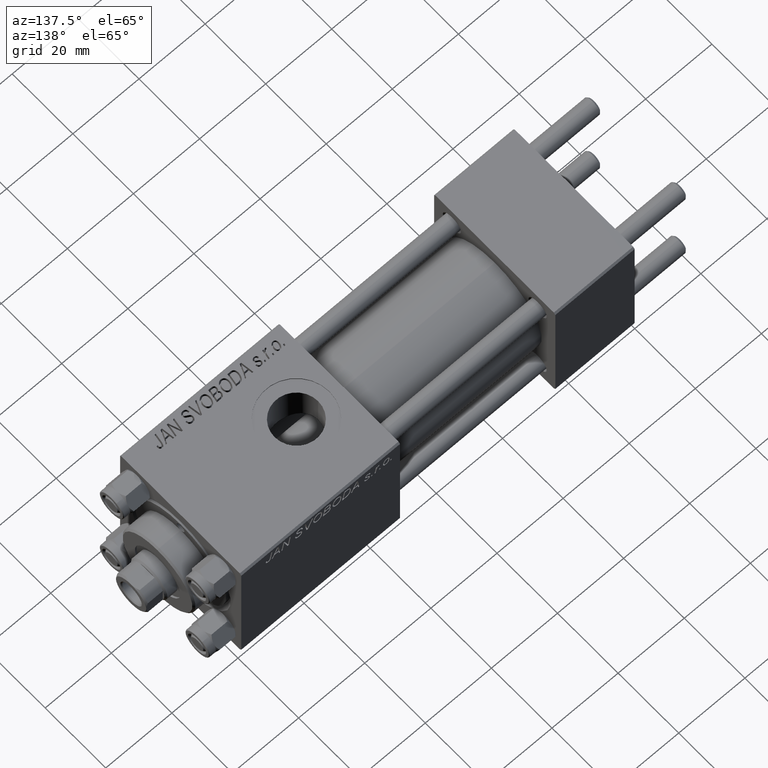
[diagram: clean part render]
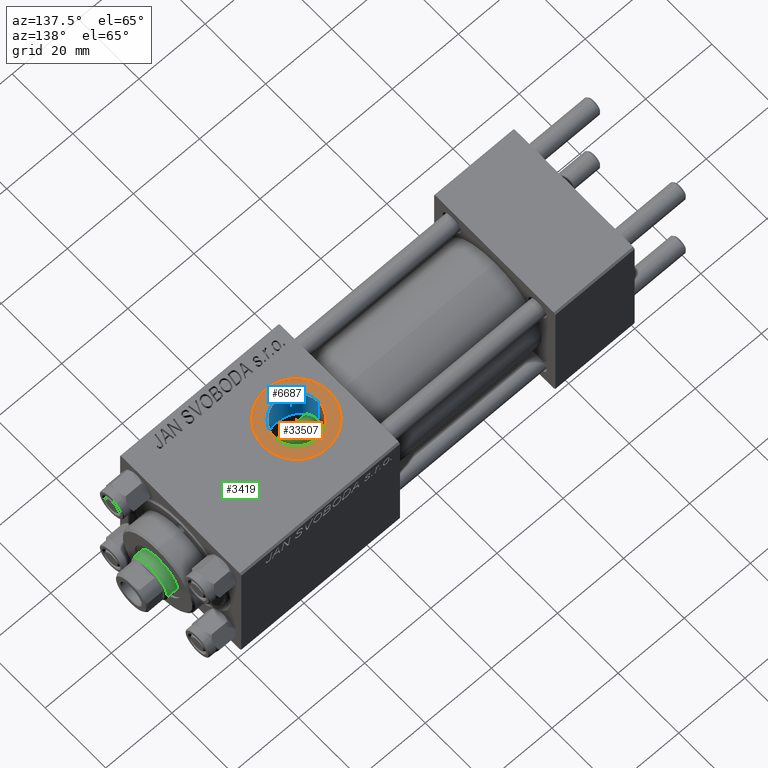
[diagram: same view with three faces highlighted in distinct colors, each labeled with its STEP entity id]
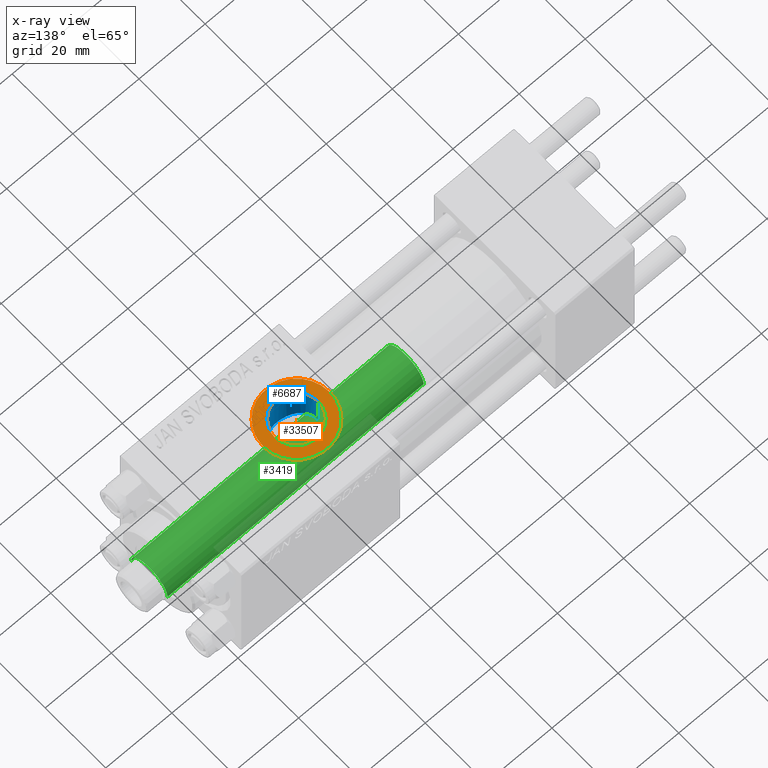
[diagram: x-ray of the same camera — body ghosted, the three highlighted faces saturated]
A machine part, auxiliary view with three faces highlighted in distinct colors.
The next image is the same camera in x-ray (body ghosted, the three faces saturated) — at least one of them is partly hidden behind the body in this view.
Their STEP definitions:

[orange] entity #33507 — the highlighted planar face has unit normal (0, 0, 1).
#2434 = ORIENTED_EDGE ( 'NONE', *, *, #42763, .T. ) ;
#4760 = CARTESIAN_POINT ( 'NONE',  ( 73.99999999999845102, -5.100766768292640183E-16, 19.80000000000000071 ) ) ;
#5747 = DIRECTION ( 'NONE',  ( -0.000000000000000000, -0.000000000000000000, -1.000000000000000000 ) ) ;
#6570 = DIRECTION ( 'NONE',  ( 1.000000000000000000, 0.000000000000000000, 0.000000000000000000 ) ) ;
#7223 = EDGE_LOOP ( 'NONE', ( #7659, #22479 ) ) ;
#7659 = ORIENTED_EDGE ( 'NONE', *, *, #28702, .T. ) ;
#9168 = CIRCLE ( 'NONE', #37365, 6.580000000001542837 ) ;
#9433 = FACE_OUTER_BOUND ( 'NONE', #7223, .T. ) ;
#9868 = CARTESIAN_POINT ( 'NONE',  ( 84.00000000000000000, -1.734723475976806897E-15, 19.80000000000000071 ) ) ;
#10233 = CARTESIAN_POINT ( 'NONE',  ( 90.58000000000154728, -9.289058821376599092E-16, 19.80000000000000071 ) ) ;
#12726 = EDGE_LOOP ( 'NONE', ( #39697, #2434 ) ) ;
#13707 = DIRECTION ( 'NONE',  ( 1.000000000000000000, 0.000000000000000000, -0.000000000000000000 ) ) ;
#15694 = DIRECTION ( 'NONE',  ( 0.000000000000000000, 0.000000000000000000, 1.000000000000000000 ) ) ;
#16922 = AXIS2_PLACEMENT_3D ( 'NONE', #19707, #15694, #31067 ) ;
#16968 = FACE_BOUND ( 'NONE', #12726, .T. ) ;
#17971 = CARTESIAN_POINT ( 'NONE',  ( 84.00000000000000000, -1.734723475976806897E-15, 19.80000000000000071 ) ) ;
#19707 = CARTESIAN_POINT ( 'NONE',  ( 84.00000000000000000, -1.734723475976806897E-15, 19.80000000000000071 ) ) ;
#21163 = CIRCLE ( 'NONE', #41377, 10.00000000000154898 ) ;
#22479 = ORIENTED_EDGE ( 'NONE', *, *, #34951, .T. ) ;
#24967 = CARTESIAN_POINT ( 'NONE',  ( 77.41999999999846693, -1.734723475976806897E-15, 19.80000000000000071 ) ) ;
#25116 = DIRECTION ( 'NONE',  ( 1.000000000000000000, 0.000000000000000000, 0.000000000000000000 ) ) ;
#28702 = EDGE_CURVE ( 'NONE', #30989, #31886, #36269, .T. ) ;
#30989 = VERTEX_POINT ( 'NONE', #37843 ) ;
#31067 = DIRECTION ( 'NONE',  ( 1.000000000000000000, 0.000000000000000000, 0.000000000000000000 ) ) ;
#31886 = VERTEX_POINT ( 'NONE', #4760 ) ;
#32694 = CARTESIAN_POINT ( 'NONE',  ( 84.00000000000000000, -1.734723475976806897E-15, 19.80000000000000071 ) ) ;
#33507 = ADVANCED_FACE ( 'NONE', ( #16968, #9433 ), #37167, .T. ) ;
#34951 = EDGE_CURVE ( 'NONE', #31886, #30989, #21163, .T. ) ;
#35838 = AXIS2_PLACEMENT_3D ( 'NONE', #9868, #36344, #6570 ) ;
#36269 = CIRCLE ( 'NONE', #16922, 10.00000000000154898 ) ;
#36344 = DIRECTION ( 'NONE',  ( -0.000000000000000000, -0.000000000000000000, -1.000000000000000000 ) ) ;
#37167 = PLANE ( 'NONE',  #44508 ) ;
#37365 = AXIS2_PLACEMENT_3D ( 'NONE', #47924, #5747, #48168 ) ;
#37843 = CARTESIAN_POINT ( 'NONE',  ( 94.00000000000154898, -1.734723475976806897E-15, 19.80000000000000071 ) ) ;
#39697 = ORIENTED_EDGE ( 'NONE', *, *, #40190, .T. ) ;
#39886 = CIRCLE ( 'NONE', #35838, 6.580000000001542837 ) ;
#40190 = EDGE_CURVE ( 'NONE', #40823, #46776, #9168, .T. ) ;
#40823 = VERTEX_POINT ( 'NONE', #24967 ) ;
#41377 = AXIS2_PLACEMENT_3D ( 'NONE', #32694, #47632, #25116 ) ;
#42763 = EDGE_CURVE ( 'NONE', #46776, #40823, #39886, .T. ) ;
#44508 = AXIS2_PLACEMENT_3D ( 'NONE', #17971, #48792, #13707 ) ;
#46776 = VERTEX_POINT ( 'NONE', #10233 ) ;
#47632 = DIRECTION ( 'NONE',  ( 0.000000000000000000, 0.000000000000000000, 1.000000000000000000 ) ) ;
#47924 = CARTESIAN_POINT ( 'NONE',  ( 84.00000000000000000, -1.734723475976806897E-15, 19.80000000000000071 ) ) ;
#48168 = DIRECTION ( 'NONE',  ( 1.000000000000000000, 0.000000000000000000, 0.000000000000000000 ) ) ;
#48792 = DIRECTION ( 'NONE',  ( 0.000000000000000000, 0.000000000000000000, 1.000000000000000000 ) ) ;

[blue] entity #6687 — the highlighted cylindrical surface (edge-blend (fillet) strip) has radius 6.58 mm, axis along (0, 0, -1).
#222 = CARTESIAN_POINT ( 'NONE',  ( 81.50365122394816808, -6.100731835174567408, 7.925108619061488113 ) ) ;
#474 = CARTESIAN_POINT ( 'NONE',  ( 82.64228046384747017, -6.441510615516904181, 7.649229527461429257 ) ) ;
#719 = CARTESIAN_POINT ( 'NONE',  ( 80.16020215073048405, -5.356874842517142632, 8.448716332623810388 ) ) ;
#1594 = EDGE_CURVE ( 'NONE', #16002, #26868, #16450, .T. ) ;
#2023 = CARTESIAN_POINT ( 'NONE',  ( 90.58000000000154728, 1.836897619300433381E-15, 15.00000000000000000 ) ) ;
#3030 = CARTESIAN_POINT ( 'NONE',  ( 87.26053252520590320, -5.728070196491263921, 8.200680661955367157 ) ) ;
#3266 = CARTESIAN_POINT ( 'NONE',  ( 90.30000000000001137, -1.899052395280420136, 9.818024241158690657 ) ) ;
#6570 = DIRECTION ( 'NONE',  ( 1.000000000000000000, 0.000000000000000000, 0.000000000000000000 ) ) ;
#6687 = ADVANCED_FACE ( 'NONE', ( #19135 ), #46423, .F. ) ;
#7320 = CARTESIAN_POINT ( 'NONE',  ( 83.43610688730976221, -6.558932760434257325, 7.548550817887899278 ) ) ;
#8326 = CARTESIAN_POINT ( 'NONE',  ( 77.56705469300284506, -1.397686090543303283, 9.903818455115036556 ) ) ;
#9479 = EDGE_LOOP ( 'NONE', ( #36202, #37768, #29813, #13386, #32830, #16233 ) ) ;
#9868 = CARTESIAN_POINT ( 'NONE',  ( 84.00000000000000000, -1.734723475976806897E-15, 19.80000000000000071 ) ) ;
#10233 = CARTESIAN_POINT ( 'NONE',  ( 90.58000000000154728, -9.289058821376599092E-16, 19.80000000000000071 ) ) ;
#10389 = CARTESIAN_POINT ( 'NONE',  ( 90.58000000000156149, -0.3230844264541308797, 14.99999999999999822 ) ) ;
#10641 = CARTESIAN_POINT ( 'NONE',  ( 88.34134544482054707, -4.948221379670047604, 8.691185487698470880 ) ) ;
#11121 = CARTESIAN_POINT ( 'NONE',  ( 87.74050804270864035, -5.416766998257490862, 8.406790300727948306 ) ) ;
#11249 = DIRECTION ( 'NONE',  ( -0.000000000000000000, -0.000000000000000000, 1.000000000000000000 ) ) ;
#11340 = CARTESIAN_POINT ( 'NONE',  ( 90.30000000000001137, -1.899052395280420136, 14.87930105885285670 ) ) ;
#11625 = CARTESIAN_POINT ( 'NONE',  ( 79.57031396582577543, -4.880372653833860319, 8.732632965334568453 ) ) ;
#11771 = EDGE_CURVE ( 'NONE', #16002, #48082, #32974, .T. ) ;
#11872 = CARTESIAN_POINT ( 'NONE',  ( 84.04743762832036680, -6.582974628388996940, 7.527585999843090292 ) ) ;
#11944 = CARTESIAN_POINT ( 'NONE',  ( 77.41999999999846693, -1.734723475976806897E-15, 42.80000000000000426 ) ) ;
#12373 = CARTESIAN_POINT ( 'NONE',  ( 81.15150766959031614, -5.943877247083126925, 8.044991576418468071 ) ) ;
#13386 = ORIENTED_EDGE ( 'NONE', *, *, #1594, .F. ) ;
#14413 = CARTESIAN_POINT ( 'NONE',  ( 90.03601729897108896, -2.648259396322893089, 9.649752199410302822 ) ) ;
#14899 = CARTESIAN_POINT ( 'NONE',  ( 85.83530013697877337, -6.321933289868085559, 7.748495657718812879 ) ) ;
#14964 = LINE ( 'NONE', #18721, #30166 ) ;
#15044 = B_SPLINE_CURVE_WITH_KNOTS ( 'NONE', 3,
 ( #2023, #10389, #48491, #29524, #25730, #41168 ),
 .UNSPECIFIED., .F., .F.,
 ( 4, 2, 4 ),
 ( 0.001923267627926015643, 0.002881828648815649985, 0.003840389669705283893 ),
 .UNSPECIFIED. ) ;
#15385 = CARTESIAN_POINT ( 'NONE',  ( 78.16834223545102134, -3.071777053897142729, 9.522948337697433985 ) ) ;
#15638 = CARTESIAN_POINT ( 'NONE',  ( 83.84132420776212768, -6.581215419008478840, 7.529131557805247787 ) ) ;
#15886 = CARTESIAN_POINT ( 'NONE',  ( 80.48004077057568395, -5.572564248888139282, 8.306509127488531874 ) ) ;
#16002 = VERTEX_POINT ( 'NONE', #25103 ) ;
#16131 = CARTESIAN_POINT ( 'NONE',  ( 79.29730408322323854, -4.618177244596259889, 8.875509752877485781 ) ) ;
#16180 = VERTEX_POINT ( 'NONE', #32130 ) ;
#16200 = CARTESIAN_POINT ( 'NONE',  ( 90.30000000000001137, -1.899052395280420136, 42.80000000000000426 ) ) ;
#16233 = ORIENTED_EDGE ( 'NONE', *, *, #44365, .F. ) ;
#16450 = LINE ( 'NONE', #16200, #36224 ) ;
#18419 = CARTESIAN_POINT ( 'NONE',  ( 86.39211994537743067, -6.132805105780794186, 7.899218132206713427 ) ) ;
#18454 = CARTESIAN_POINT ( 'NONE',  ( 77.41999999999846693, 1.225496641077837722E-15, 9.999999999999998224 ) ) ;
#18661 = CARTESIAN_POINT ( 'NONE',  ( 89.01171256368644435, -4.281038711601321545, 9.043476487246550732 ) ) ;
#18721 = CARTESIAN_POINT ( 'NONE',  ( 90.58000000000154728, -9.289058821376597120E-16, 42.80000000000000426 ) ) ;
#19135 = FACE_OUTER_BOUND ( 'NONE', #9479, .T. ) ;
#19222 = LINE ( 'NONE', #11944, #19716 ) ;
#19716 = VECTOR ( 'NONE', #42713, 1000.000000000000000 ) ;
#19903 = CARTESIAN_POINT ( 'NONE',  ( 78.57242859662287060, -3.724876030303978069, 9.281895439158068584 ) ) ;
#22213 = CARTESIAN_POINT ( 'NONE',  ( 87.89699318866286148, -5.305288046703262594, 8.477775428654018341 ) ) ;
#22691 = CARTESIAN_POINT ( 'NONE',  ( 84.65744280686338641, -6.559709605006789346, 7.547889352008899877 ) ) ;
#23187 = CARTESIAN_POINT ( 'NONE',  ( 78.46622740148208663, -3.565203004854784474, 9.344512687240586146 ) ) ;
#23433 = CARTESIAN_POINT ( 'NONE',  ( 77.72104259078042787, -1.977670684214428043, 9.804446867313098224 ) ) ;
#24967 = CARTESIAN_POINT ( 'NONE',  ( 77.41999999999846693, -1.734723475976806897E-15, 19.80000000000000071 ) ) ;
#25103 = CARTESIAN_POINT ( 'NONE',  ( 90.30000000000001137, -1.899052395280420136, 9.818024241158690657 ) ) ;
#25730 = CARTESIAN_POINT ( 'NONE',  ( 90.39284622331669539, -1.591040247564623700, 14.91861279833453757 ) ) ;
#26225 = CARTESIAN_POINT ( 'NONE',  ( 90.18384735178129574, -2.284382302762963501, 9.743491762341799145 ) ) ;
#26459 = CARTESIAN_POINT ( 'NONE',  ( 86.92434068310684836, -5.907044672534588869, 8.071096920454994716 ) ) ;
#26708 = CARTESIAN_POINT ( 'NONE',  ( 78.91948560029506154, -4.185857250486422210, 9.083179932574980242 ) ) ;
#26868 = VERTEX_POINT ( 'NONE', #11340 ) ;
#26960 = CARTESIAN_POINT ( 'NONE',  ( 77.41999999999848114, -0.4081853129699585803, 10.00000000000000711 ) ) ;
#29524 = CARTESIAN_POINT ( 'NONE',  ( 90.46247493449395449, -1.278752734038846484, 14.94875937294843737 ) ) ;
#29813 = ORIENTED_EDGE ( 'NONE', *, *, #40855, .T. ) ;
#30166 = VECTOR ( 'NONE', #45753, 1000.000000000000000 ) ;
#30740 = DIRECTION ( 'NONE',  ( 0.000000000000000000, 0.000000000000000000, -1.000000000000000000 ) ) ;
#31013 = CARTESIAN_POINT ( 'NONE',  ( 77.99714712711040931, -2.723766581249583485, 9.629423614267258458 ) ) ;
#31255 = CARTESIAN_POINT ( 'NONE',  ( 85.05563542025694801, -6.507095227759212008, 7.594134426896898660 ) ) ;
#32130 = CARTESIAN_POINT ( 'NONE',  ( 90.58000000000154728, 1.836897619300433381E-15, 15.00000000000000000 ) ) ;
#32830 = ORIENTED_EDGE ( 'NONE', *, *, #11771, .T. ) ;
#32974 = B_SPLINE_CURVE_WITH_KNOTS ( 'NONE', 3,
 ( #3266, #26225, #14413, #45197, #41663, #18661, #45692, #10641, #34052, #22213, #11121, #3030, #26459, #18419, #49488, #14899, #41898, #31255, #22691, #11872, #15638, #7320, #46183, #38104, #474, #38356, #38599, #222, #12373, #15886, #719, #11625, #16131, #26708, #34302, #19903, #23187, #15385, #31013, #42895, #23433, #35047, #8326, #38846, #26960, #42397 ),
 .UNSPECIFIED., .F., .F.,
 ( 4, 2, 2, 2, 2, 2, 2, 2, 2, 2, 2, 2, 2, 2, 2, 2, 2, 2, 2, 2, 2, 2, 4 ),
 ( 0.000000000000000000, 0.001207791230099372441, 0.002415582460198744882, 0.003623373690298115155, 0.004227269305347786631, 0.004831164920397457672, 0.006038956150496800623, 0.006642851765546489880, 0.007246747380596180003, 0.008454538610695601017, 0.009058434225745329305, 0.009662329840795061062, 0.01026622545584479108, 0.01087012107089451937, 0.01207791230099397942, 0.01328570353109343946, 0.01449349476119290124, 0.01509739037624264514, 0.01570128599129239078, 0.01690907722139185429, 0.01751297283644158778, 0.01811686845149132127, 0.01932465968159079173 ),
 .UNSPECIFIED. ) ;
#34052 = CARTESIAN_POINT ( 'NONE',  ( 88.19718467613775204, -5.071121963172631197, 8.619888602053425330 ) ) ;
#34302 = CARTESIAN_POINT ( 'NONE',  ( 78.79875737437667738, -4.034886358906389248, 9.151392050136836431 ) ) ;
#35047 = CARTESIAN_POINT ( 'NONE',  ( 77.61241581301695192, -1.592248641449762747, 9.874366003595781649 ) ) ;
#35838 = AXIS2_PLACEMENT_3D ( 'NONE', #9868, #36344, #6570 ) ;
#36202 = ORIENTED_EDGE ( 'NONE', *, *, #42763, .F. ) ;
#36224 = VECTOR ( 'NONE', #11249, 1000.000000000000000 ) ;
#36344 = DIRECTION ( 'NONE',  ( -0.000000000000000000, -0.000000000000000000, -1.000000000000000000 ) ) ;
#37768 = ORIENTED_EDGE ( 'NONE', *, *, #43525, .T. ) ;
#38104 = CARTESIAN_POINT ( 'NONE',  ( 82.83871781191031403, -6.479820246555592966, 7.616654439233103702 ) ) ;
#38356 = CARTESIAN_POINT ( 'NONE',  ( 82.25327158685063011, -6.347078162380216604, 7.727766182684421281 ) ) ;
#38599 = CARTESIAN_POINT ( 'NONE',  ( 82.06128195139868353, -6.290973204691355569, 7.773687993804112573 ) ) ;
#38846 = CARTESIAN_POINT ( 'NONE',  ( 77.45763783829498550, -0.8084208477571691587, 9.975121118623741623 ) ) ;
#39886 = CIRCLE ( 'NONE', #35838, 6.580000000001542837 ) ;
#40823 = VERTEX_POINT ( 'NONE', #24967 ) ;
#40855 = EDGE_CURVE ( 'NONE', #16180, #26868, #15044, .T. ) ;
#41168 = CARTESIAN_POINT ( 'NONE',  ( 90.30000000000001137, -1.899052395280420136, 14.87930105885285670 ) ) ;
#41663 = CARTESIAN_POINT ( 'NONE',  ( 89.47667727346387778, -3.667500690329295931, 9.309199649381490360 ) ) ;
#41898 = CARTESIAN_POINT ( 'NONE',  ( 85.64143006621837628, -6.375121249720390182, 7.704616833470068649 ) ) ;
#42397 = CARTESIAN_POINT ( 'NONE',  ( 77.41999999999846693, 1.225496641077837722E-15, 9.999999999999998224 ) ) ;
#42713 = DIRECTION ( 'NONE',  ( 0.000000000000000000, 0.000000000000000000, -1.000000000000000000 ) ) ;
#42763 = EDGE_CURVE ( 'NONE', #46776, #40823, #39886, .T. ) ;
#42895 = CARTESIAN_POINT ( 'NONE',  ( 77.78468472322818172, -2.169203254887546617, 9.763745855050723677 ) ) ;
#43525 = EDGE_CURVE ( 'NONE', #46776, #16180, #14964, .T. ) ;
#44365 = EDGE_CURVE ( 'NONE', #40823, #48082, #19222, .T. ) ;
#45197 = CARTESIAN_POINT ( 'NONE',  ( 89.68316260257665817, -3.338928794743214468, 9.433056230293079381 ) ) ;
#45692 = CARTESIAN_POINT ( 'NONE',  ( 88.75695250607545006, -4.561896889324866144, 8.903678834413629062 ) ) ;
#45753 = DIRECTION ( 'NONE',  ( 0.000000000000000000, 0.000000000000000000, -1.000000000000000000 ) ) ;
#46168 = DIRECTION ( 'NONE',  ( -1.000000000000000000, 0.000000000000000000, 0.000000000000000000 ) ) ;
#46183 = CARTESIAN_POINT ( 'NONE',  ( 83.23563096081821300, -6.538530929802691460, 7.566314066596407706 ) ) ;
#46423 = CYLINDRICAL_SURFACE ( 'NONE', #46872, 6.580000000001542837 ) ;
#46776 = VERTEX_POINT ( 'NONE', #10233 ) ;
#46872 = AXIS2_PLACEMENT_3D ( 'NONE', #49955, #30740, #46168 ) ;
#48082 = VERTEX_POINT ( 'NONE', #18454 ) ;
#48491 = CARTESIAN_POINT ( 'NONE',  ( 90.55605924908761040, -0.6456608678150235203, 14.98945420583744870 ) ) ;
#49488 = CARTESIAN_POINT ( 'NONE',  ( 86.21002104074251804, -6.200884946022790167, 7.845702732414576275 ) ) ;
#49955 = CARTESIAN_POINT ( 'NONE',  ( 84.00000000000000000, -1.734723475976806897E-15, 42.80000000000000426 ) ) ;

[green] entity #3419 — the highlighted cylindrical surface (edge-blend (fillet) strip) has radius 6 mm, axis along (-1, 0, 0).
#230 = CARTESIAN_POINT ( 'NONE',  ( 6.000000000000000888, 7.347880794884120722E-16, 105.0000000000000000 ) ) ;
#455 = VERTEX_POINT ( 'NONE', #48034 ) ;
#1441 = ORIENTED_EDGE ( 'NONE', *, *, #34483, .T. ) ;
#2043 = CARTESIAN_POINT ( 'NONE',  ( 0.000000000000000000, 0.000000000000000000, 105.0000000000000000 ) ) ;
#3419 = ADVANCED_FACE ( 'NONE', ( #43730 ), #24511, .T. ) ;
#8645 = DIRECTION ( 'NONE',  ( 1.000000000000000000, 0.000000000000000000, 0.000000000000000000 ) ) ;
#11035 = VERTEX_POINT ( 'NONE', #18296 ) ;
#11514 = EDGE_CURVE ( 'NONE', #11035, #30983, #38813, .T. ) ;
#17700 = EDGE_LOOP ( 'NONE', ( #43308, #18348, #41201, #1441 ) ) ;
#18296 = CARTESIAN_POINT ( 'NONE',  ( 6.000000000000000888, 7.347880794884120722E-16, 104.5000000000000142 ) ) ;
#18348 = ORIENTED_EDGE ( 'NONE', *, *, #11514, .T. ) ;
#20289 = AXIS2_PLACEMENT_3D ( 'NONE', #26768, #35356, #8645 ) ;
#22749 = AXIS2_PLACEMENT_3D ( 'NONE', #46237, #30558, #33618 ) ;
#24264 = DIRECTION ( 'NONE',  ( -1.000000000000000000, 0.000000000000000000, 0.000000000000000000 ) ) ;
#24401 = EDGE_CURVE ( 'NONE', #11035, #455, #46192, .T. ) ;
#24511 = CYLINDRICAL_SURFACE ( 'NONE', #40304, 6.000000000000000888 ) ;
#24622 = CARTESIAN_POINT ( 'NONE',  ( -6.000000000000000888, 0.000000000000000000, 27.00000000000000000 ) ) ;
#26768 = CARTESIAN_POINT ( 'NONE',  ( 0.000000000000000000, 0.000000000000000000, 104.5000000000000142 ) ) ;
#30558 = DIRECTION ( 'NONE',  ( 0.000000000000000000, 0.000000000000000000, 1.000000000000000000 ) ) ;
#30983 = VERTEX_POINT ( 'NONE', #33794 ) ;
#31571 = EDGE_CURVE ( 'NONE', #30983, #34966, #42268, .T. ) ;
#33618 = DIRECTION ( 'NONE',  ( 1.000000000000000000, 0.000000000000000000, 0.000000000000000000 ) ) ;
#33794 = CARTESIAN_POINT ( 'NONE',  ( -6.000000000000000888, 0.000000000000000000, 104.5000000000000142 ) ) ;
#34483 = EDGE_CURVE ( 'NONE', #34966, #455, #41345, .T. ) ;
#34966 = VERTEX_POINT ( 'NONE', #24622 ) ;
#35356 = DIRECTION ( 'NONE',  ( 0.000000000000000000, 0.000000000000000000, -1.000000000000000000 ) ) ;
#35987 = VECTOR ( 'NONE', #42646, 1000.000000000000000 ) ;
#38800 = VECTOR ( 'NONE', #45806, 1000.000000000000000 ) ;
#38813 = CIRCLE ( 'NONE', #20289, 6.000000000000000888 ) ;
#40304 = AXIS2_PLACEMENT_3D ( 'NONE', #2043, #40682, #24264 ) ;
#40682 = DIRECTION ( 'NONE',  ( -0.000000000000000000, -0.000000000000000000, -1.000000000000000000 ) ) ;
#41201 = ORIENTED_EDGE ( 'NONE', *, *, #31571, .T. ) ;
#41345 = CIRCLE ( 'NONE', #22749, 6.000000000000000888 ) ;
#42268 = LINE ( 'NONE', #49605, #38800 ) ;
#42646 = DIRECTION ( 'NONE',  ( -0.000000000000000000, -0.000000000000000000, -1.000000000000000000 ) ) ;
#43308 = ORIENTED_EDGE ( 'NONE', *, *, #24401, .F. ) ;
#43730 = FACE_OUTER_BOUND ( 'NONE', #17700, .T. ) ;
#45806 = DIRECTION ( 'NONE',  ( -0.000000000000000000, -0.000000000000000000, -1.000000000000000000 ) ) ;
#46192 = LINE ( 'NONE', #230, #35987 ) ;
#46237 = CARTESIAN_POINT ( 'NONE',  ( 0.000000000000000000, 0.000000000000000000, 27.00000000000000000 ) ) ;
#48034 = CARTESIAN_POINT ( 'NONE',  ( 6.000000000000000888, 7.347880794884120722E-16, 27.00000000000000000 ) ) ;
#49605 = CARTESIAN_POINT ( 'NONE',  ( -6.000000000000000888, 0.000000000000000000, 105.0000000000000000 ) ) ;